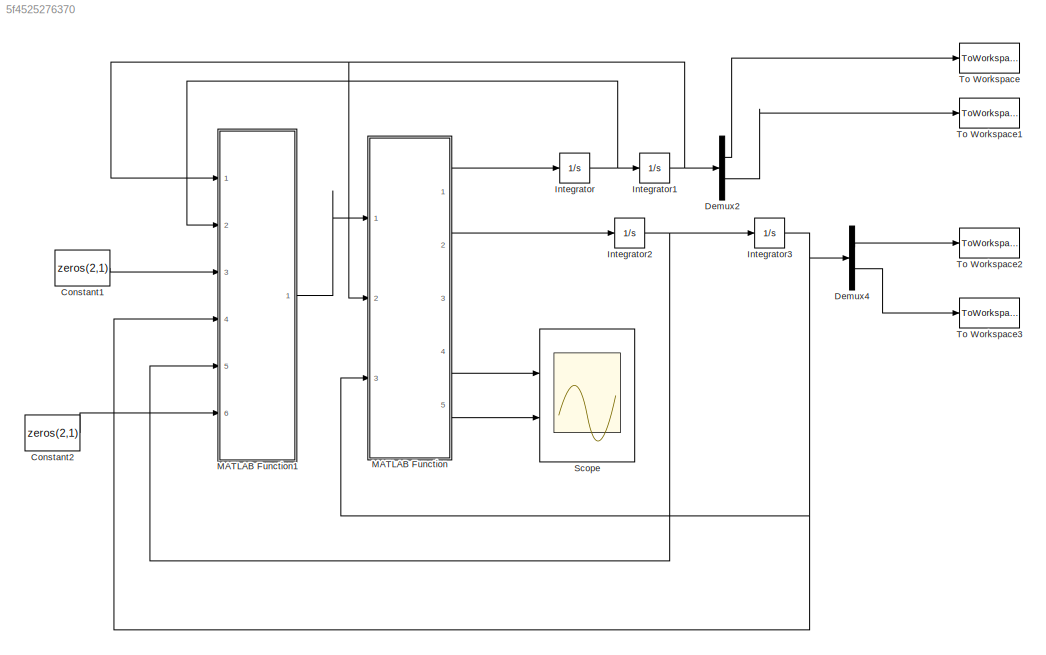
MODEL slx_5f4525276370
KIND model
CONFIG AbsTol = auto
CONFIG EnableMultiTasking = on
CONFIG FixedStep = Ts
CONFIG MaxStep = auto
CONFIG MinStep = auto
CONFIG RelTol = 1e-3
CONFIG SampleTimeConstraint = Unconstrained
CONFIG SolverName = ode4
CONFIG StartTime = 0.0
CONFIG StopTime = 10
BLOCK [Constant] Constant1
  Value = zeros(2,1)
BLOCK [Constant] Constant2
  Value = zeros(2,1)
BLOCK [Demux] Demux2
  Outputs = 2
  Ports = [1, 2]
BLOCK [Demux] Demux4
  Outputs = 2
  Ports = [1, 2]
BLOCK [Integrator] Integrator
  InitialCondition = q0dot
  Ports = [1, 1]
BLOCK [Integrator] Integrator1
  InitialCondition = q10
  Ports = [1, 1]
BLOCK [Integrator] Integrator2
  InitialCondition = q0dot
  Ports = [1, 1]
BLOCK [Integrator] Integrator3
  InitialCondition = q20
  Ports = [1, 1]
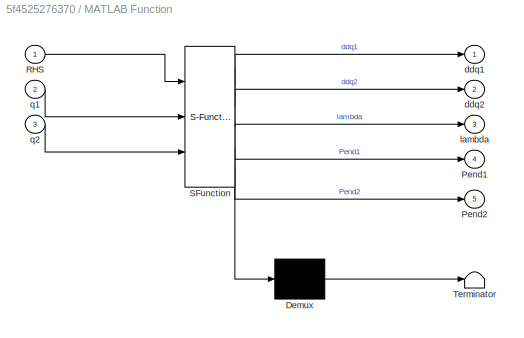
BLOCK [SubSystem] MATLAB Function
  ErrorFcn = Stateflow.Translate.translate
  PermitHierarchicalResolution = ExplicitOnly
  Ports = [3, 5]
  RequestExecContextInheritance = off
  SFBlockType = MATLAB Function
  TreatAsAtomicUnit = on
BLOCK [Demux] MATLAB Function/ Demux 
  Outputs = 1
  Ports = [1, 1]
BLOCK [S-Function] MATLAB Function/ SFunction 
  EnableBusSupport = on
  FunctionName = sf_sfun
  PortCounts = [3 6]
  Ports = [3, 6]
  SFcnIsStateOwnerBlock = off
  SFunctionDeploymentMode = off
  Tag = Stateflow S-Function 2
BLOCK [Terminator] MATLAB Function/ Terminator 
BLOCK [Outport] MATLAB Function/Pend1
  Port = 4
BLOCK [Outport] MATLAB Function/Pend2
  Port = 5
BLOCK [Inport] MATLAB Function/RHS
BLOCK [Outport] MATLAB Function/ddq1
BLOCK [Outport] MATLAB Function/ddq2
  Port = 2
BLOCK [Outport] MATLAB Function/lambda
  Port = 3
BLOCK [Inport] MATLAB Function/q1
  Port = 2
BLOCK [Inport] MATLAB Function/q2
  Port = 3
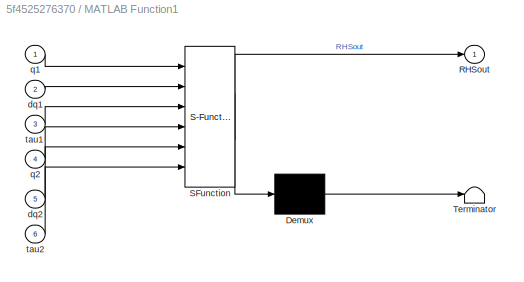
BLOCK [SubSystem] MATLAB Function1
  ErrorFcn = Stateflow.Translate.translate
  PermitHierarchicalResolution = ExplicitOnly
  Ports = [6, 1]
  RequestExecContextInheritance = off
  SFBlockType = MATLAB Function
  TreatAsAtomicUnit = on
BLOCK [Demux] MATLAB Function1/ Demux 
  Outputs = 1
  Ports = [1, 1]
BLOCK [S-Function] MATLAB Function1/ SFunction 
  EnableBusSupport = on
  FunctionName = sf_sfun
  PortCounts = [6 2]
  Ports = [6, 2]
  SFcnIsStateOwnerBlock = off
  SFunctionDeploymentMode = off
  Tag = Stateflow S-Function 1
BLOCK [Terminator] MATLAB Function1/ Terminator 
BLOCK [Outport] MATLAB Function1/RHSout
BLOCK [Inport] MATLAB Function1/dq1
  Port = 2
BLOCK [Inport] MATLAB Function1/dq2
  Port = 5
BLOCK [Inport] MATLAB Function1/q1
BLOCK [Inport] MATLAB Function1/q2
  Port = 4
BLOCK [Inport] MATLAB Function1/tau1
  Port = 3
BLOCK [Inport] MATLAB Function1/tau2
  Port = 6
BLOCK [Scope] Scope
  Floating = off
  NumInputPorts = 2
  Ports = [2]
  ScopeSpecificationString = Simulink.scopes.TimeScopeBlockCfg('CurrentConfiguration', extmgr.ConfigurationSet(extmgr.Configuration('Core','General UI',true),extmgr.Configuration('Core','Source UI',true),extmgr.Configuration('Sources','WiredSimulink',true),extmgr.Configuration('Visuals','Time Domain',true,'SerializedDisplays',{struct('MinYLimReal','-2.2109','MaxYLimReal','2.46739','YLabelReal','','MinYLimMag','0.00000','MaxYL...<+2134ch>
BLOCK [ToWorkspace] To Workspace
  FixptAsFi = on
  MaxDataPoints = inf
  Ports = [1]
  SampleTime = -1
  SaveFormat = Timeseries
  VariableName = q1values
BLOCK [ToWorkspace] To Workspace1
  FixptAsFi = on
  MaxDataPoints = inf
  Ports = [1]
  SampleTime = -1
  SaveFormat = Timeseries
  VariableName = q2values
BLOCK [ToWorkspace] To Workspace2
  FixptAsFi = on
  MaxDataPoints = inf
  Ports = [1]
  SampleTime = -1
  SaveFormat = Timeseries
  VariableName = q1values1
BLOCK [ToWorkspace] To Workspace3
  FixptAsFi = on
  MaxDataPoints = inf
  Ports = [1]
  SampleTime = -1
  SaveFormat = Timeseries
  VariableName = q2values1
LINE Constant1:1 -> MATLAB Function1:3
LINE Constant2:1 -> MATLAB Function1:6
LINE Demux2:1 -> To Workspace:1
LINE Demux2:2 -> To Workspace1:1
LINE Demux4:1 -> To Workspace2:1
LINE Demux4:2 -> To Workspace3:1
NET Integrator1:1 -> Demux2:1, MATLAB Function1:1, MATLAB Function:2
NET Integrator2:1 -> Integrator3:1, MATLAB Function1:5
NET Integrator3:1 -> Demux4:1, MATLAB Function1:4, MATLAB Function:3
NET Integrator:1 -> Integrator1:1, MATLAB Function1:2
LINE MATLAB Function1:1 -> MATLAB Function:1
LINE MATLAB Function:1 -> Integrator:1
LINE MATLAB Function:2 -> Integrator2:1
LINE MATLAB Function:4 -> Scope:1
LINE MATLAB Function:5 -> Scope:2
note: NET lines group one-source signal fan-out (src -> all destinations, sorted); 1:1 wires keep LINE
CHART MATLAB Function1 states=1 transitions=1
  STATE_LABEL 'eML_blk_kernel()'
  STATE_LABEL 'SCRIPT:\nfunction RHSout = fcn(q1,dq1,tau1,q2,dq2,tau2)\n\nRHSout = RHS(q1,dq1,tau1,q2,dq2,tau2);\n\n'
CHART MATLAB Function states=1 transitions=1
  STATE_LABEL 'eML_blk_kernel()'
  STATE_LABEL 'SCRIPT:\nfunction [ddq1,ddq2,lambda,Pend1,Pend2] = MassMatrix(RHS,q1,q2)\n\nIM = modifiedInertiaMatrix(q1,q2);\n\nddQ = IM\\RHS;\n\nPend1 = Pend(q1);\nPend2 = Pend(q2);\n\nddq1 = ddQ(1:2);\nddq2 = ddQ(3:4);\nlambda = ddQ(5:7);\n\n'
CHART  states=0 transitions=0
CHART  states=0 transitions=0
